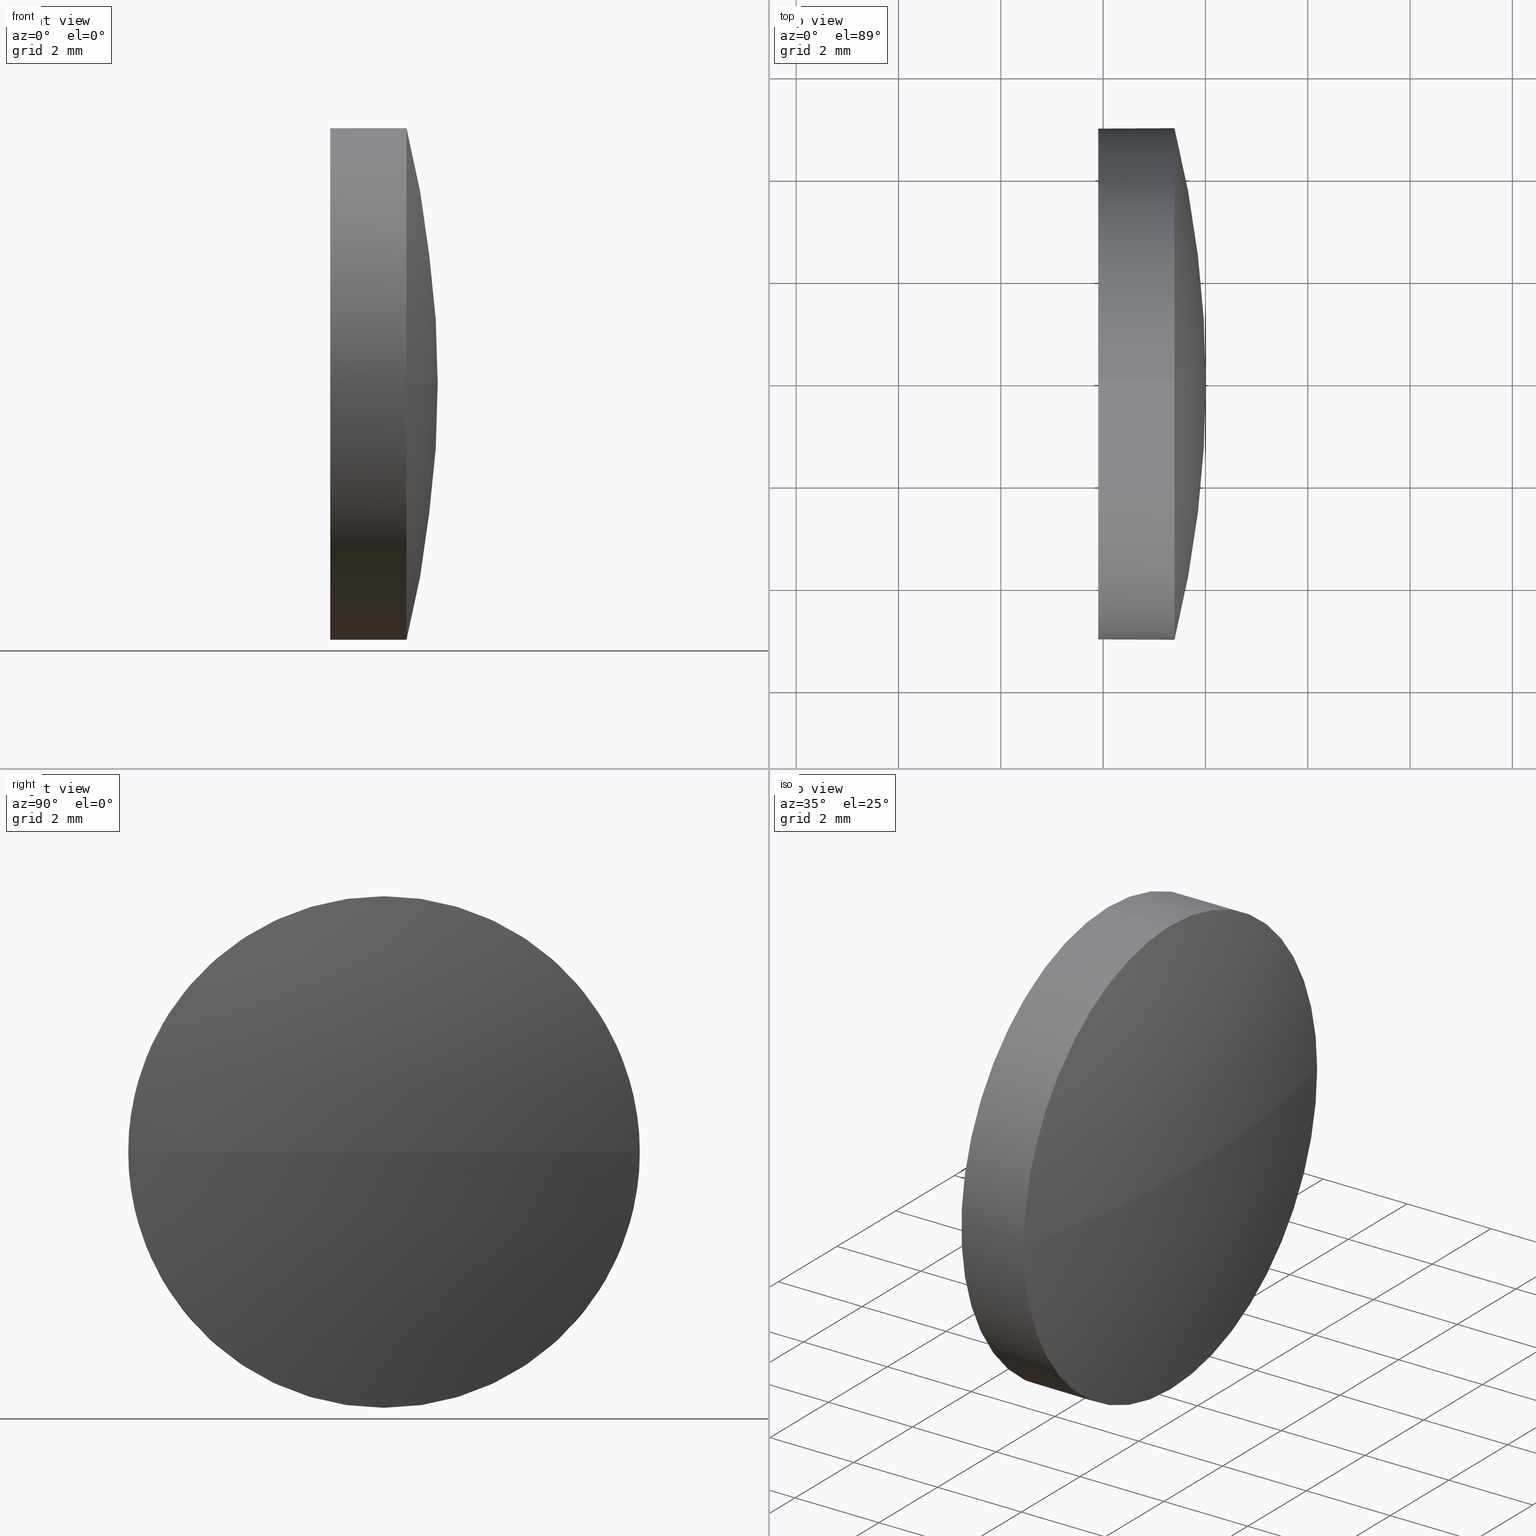
[diagram: canonical four-view strip — front | top / right | iso, engineering-drawing reading convention]
A machine part, canonical four-view strip (front | top / right | iso — engineering-drawing reading convention). The complete STEP part file that produces these views, byte-faithful:
ISO-10303-21;
HEADER;
FILE_DESCRIPTION (( 'STEP AP214' ),
    '1' );
FILE_NAME ('100191.STEP',
    '2019-05-21T07:47:52',
    ( '' ),
    ( '' ),
    'SwSTEP 2.0',
    'SolidWorks 2016',
    '' );
FILE_SCHEMA (( 'AUTOMOTIVE_DESIGN' ));
ENDSEC;

DATA;
#1 = FACE_OUTER_BOUND ( 'NONE', #95, .T. ) ;
#2 = DIRECTION ( 'NONE',  ( 0.0000000000000000000, 0.0000000000000000000, 1.000000000000000000 ) ) ;
#3 = CARTESIAN_POINT ( 'NONE',  ( 601.9052396090429500, 21.94448567432954200, 0.0000000000000000000 ) ) ;
#4 = FACE_OUTER_BOUND ( 'NONE', #58, .T. ) ;
#5 = DIRECTION ( 'NONE',  ( -1.000000000000000000, -0.0000000000000000000, -0.0000000000000000000 ) ) ;
#6 =( NAMED_UNIT ( * ) SI_UNIT ( $, .STERADIAN. ) SOLID_ANGLE_UNIT ( ) );
#7 = CLOSED_SHELL ( 'NONE', ( #78, #149, #135, #137, #114 ) ) ;
#8 = ORIENTED_EDGE ( 'NONE', *, *, #167, .T. ) ;
#9 = DIRECTION ( 'NONE',  ( 1.000000000000000000, 0.0000000000000000000, 0.0000000000000000000 ) ) ;
#10 = FACE_OUTER_BOUND ( 'NONE', #80, .T. ) ;
#11 = EDGE_CURVE ( 'NONE', #13, #99, #126, .T. ) ;
#12 = VERTEX_POINT ( 'NONE', #110 ) ;
#13 = VERTEX_POINT ( 'NONE', #107 ) ;
#14 = EDGE_CURVE ( 'NONE', #13, #86, #65, .T. ) ;
#15 = ORIENTED_EDGE ( 'NONE', *, *, #16, .T. ) ;
#16 = EDGE_CURVE ( 'NONE', #86, #51, #168, .T. ) ;
#17 = EDGE_CURVE ( 'NONE', #79, #99, #180, .T. ) ;
#18 = FILL_AREA_STYLE_COLOUR ( '', #104 ) ;
#19 = DIRECTION ( 'NONE',  ( 0.0000000000000000000, -1.000000000000000000, 0.0000000000000000000 ) ) ;
#20 = CARTESIAN_POINT ( 'NONE',  ( 583.2084363303545200, 21.94448567432968000, 0.0000000000000000000 ) ) ;
#21 = DIRECTION ( 'NONE',  ( 0.0000000000000000000, 0.0000000000000000000, 1.000000000000000000 ) ) ;
#22 = APPLICATION_CONTEXT ( 'automotive_design' ) ;
#23 = FACE_OUTER_BOUND ( 'NONE', #155, .T. ) ;
#24 = ORIENTED_EDGE ( 'NONE', *, *, #14, .F. ) ;
#25 =( LENGTH_UNIT ( ) NAMED_UNIT ( * ) SI_UNIT ( .MILLI., .METRE. ) );
#26 = CYLINDRICAL_SURFACE ( 'NONE', #75, 4.999999999999997300 ) ;
#27 = MANIFOLD_SOLID_BREP ( '��ת2', #7 ) ;
#28 = PRESENTATION_STYLE_ASSIGNMENT (( #61 ) ) ;
#29 = EDGE_CURVE ( 'NONE', #79, #35, #153, .T. ) ;
#30 = ORIENTED_EDGE ( 'NONE', *, *, #16, .F. ) ;
#31 = CIRCLE ( 'NONE', #144, 4.999999999999997300 ) ;
#32 = ORIENTED_EDGE ( 'NONE', *, *, #90, .F. ) ;
#33 = PRESENTATION_LAYER_ASSIGNMENT (  '', '', ( #73 ) ) ;
#34 = DIRECTION ( 'NONE',  ( -1.000000000000000000, -0.0000000000000000000, -0.0000000000000000000 ) ) ;
#35 = VERTEX_POINT ( 'NONE', #76 ) ;
#36 =( NAMED_UNIT ( * ) SI_UNIT ( $, .STERADIAN. ) SOLID_ANGLE_UNIT ( ) );
#37 = DIRECTION ( 'NONE',  ( -1.000000000000000000, -0.0000000000000000000, -0.0000000000000000000 ) ) ;
#38 = PRODUCT_DEFINITION ( 'δ֪', '', #122, #146 ) ;
#39 = PRODUCT_DEFINITION_SHAPE ( 'NONE', 'NONE',  #38 ) ;
#40 = DIRECTION ( 'NONE',  ( 0.0000000000000000000, -1.000000000000000000, 0.0000000000000000000 ) ) ;
#41 = APPLICATION_PROTOCOL_DEFINITION ( 'draft international standard', 'automotive_design', 1998, #22 ) ;
#42 = AXIS2_PLACEMENT_3D ( 'NONE', #115, #68, #19 ) ;
#43 =( LENGTH_UNIT ( ) NAMED_UNIT ( * ) SI_UNIT ( .MILLI., .METRE. ) );
#44 = ORIENTED_EDGE ( 'NONE', *, *, #17, .T. ) ;
#45 = DIRECTION ( 'NONE',  ( 0.0000000000000000000, -1.000000000000000000, -1.224646799147353200E-016 ) ) ;
#46 = CARTESIAN_POINT ( 'NONE',  ( 583.2084363303545200, 21.94448567432968000, 0.0000000000000000000 ) ) ;
#47 = ORIENTED_EDGE ( 'NONE', *, *, #90, .T. ) ;
#48 = DIRECTION ( 'NONE',  ( 0.0000000000000000000, 0.0000000000000000000, -1.000000000000000000 ) ) ;
#49 = DIRECTION ( 'NONE',  ( -1.000000000000000000, 0.0000000000000000000, 0.0000000000000000000 ) ) ;
#50 = PLANE ( 'NONE',  #69 ) ;
#51 = VERTEX_POINT ( 'NONE', #158 ) ;
#52 =( GEOMETRIC_REPRESENTATION_CONTEXT ( 3 ) GLOBAL_UNCERTAINTY_ASSIGNED_CONTEXT ( ( #134 ) ) GLOBAL_UNIT_ASSIGNED_CONTEXT ( ( #43, #60, #77 ) ) REPRESENTATION_CONTEXT ( 'NONE', 'WORKASPACE' ) );
#53 = SURFACE_SIDE_STYLE ('',( #159 ) ) ;
#54 = EDGE_CURVE ( 'NONE', #51, #86, #83, .T. ) ;
#55 = ORIENTED_EDGE ( 'NONE', *, *, #11, .F. ) ;
#56 = UNCERTAINTY_MEASURE_WITH_UNIT (LENGTH_MEASURE( 1.000000000000000100E-005 ), #25, 'distance_accuracy_value', 'NONE');
#57 = AXIS2_PLACEMENT_3D ( 'NONE', #59, #172, #169 ) ;
#58 = EDGE_LOOP ( 'NONE', ( #145, #127, #116, #129 ) ) ;
#59 = CARTESIAN_POINT ( 'NONE',  ( 601.9052396090429500, 21.94448567432954200, 0.0000000000000000000 ) ) ;
#60 =( NAMED_UNIT ( * ) PLANE_ANGLE_UNIT ( ) SI_UNIT ( $, .RADIAN. ) );
#61 = SURFACE_STYLE_USAGE ( .BOTH. , #92 ) ;
#62 = DIRECTION ( 'NONE',  ( 0.0000000000000000000, -1.224646799147353200E-016, 1.000000000000000000 ) ) ;
#63 = DIRECTION ( 'NONE',  ( -1.000000000000000000, -0.0000000000000000000, -0.0000000000000000000 ) ) ;
#64 = CARTESIAN_POINT ( 'NONE',  ( 583.2084363303545200, 21.94448567432968000, 0.0000000000000000000 ) ) ;
#65 = LINE ( 'NONE', #174, #147 ) ;
#66 = MECHANICAL_DESIGN_GEOMETRIC_PRESENTATION_REPRESENTATION (  '', ( #73 ), #52 ) ;
#67 = CARTESIAN_POINT ( 'NONE',  ( 603.3952396090428500, 26.94448567432957400, 6.123233995736636100E-016 ) ) ;
#68 = DIRECTION ( 'NONE',  ( 0.0000000000000000000, 0.0000000000000000000, 1.000000000000000000 ) ) ;
#69 = AXIS2_PLACEMENT_3D ( 'NONE', #178, #151, #48 ) ;
#70 = PRODUCT_CONTEXT ( 'NONE', #22, 'mechanical' ) ;
#71 = CYLINDRICAL_SURFACE ( 'NONE', #97, 4.999999999999997300 ) ;
#72 = APPLICATION_PROTOCOL_DEFINITION ( 'draft international standard', 'automotive_design', 1998, #87 ) ;
#73 = STYLED_ITEM ( 'NONE', ( #28 ), #27 ) ;
#74 = ORIENTED_EDGE ( 'NONE', *, *, #154, .T. ) ;
#75 = AXIS2_PLACEMENT_3D ( 'NONE', #150, #141, #142 ) ;
#76 = CARTESIAN_POINT ( 'NONE',  ( 603.3952396090428500, 16.94448567432964800, 0.0000000000000000000 ) ) ;
#77 =( NAMED_UNIT ( * ) SI_UNIT ( $, .STERADIAN. ) SOLID_ANGLE_UNIT ( ) );
#78 = ADVANCED_FACE ( 'NONE', ( #1 ), #71, .T. ) ;
#79 = VERTEX_POINT ( 'NONE', #81 ) ;
#80 = EDGE_LOOP ( 'NONE', ( #15, #143 ) ) ;
#81 = CARTESIAN_POINT ( 'NONE',  ( 604.0052396090428600, 21.94448567432968000, 0.0000000000000000000 ) ) ;
#82 = CARTESIAN_POINT ( 'NONE',  ( 603.3952396090428500, 21.94448567432954200, 0.0000000000000000000 ) ) ;
#83 = CIRCLE ( 'NONE', #128, 4.999999999999997300 ) ;
#84 = AXIS2_PLACEMENT_3D ( 'NONE', #20, #130, #49 ) ;
#85 = DIRECTION ( 'NONE',  ( 0.0000000000000000000, 0.0000000000000000000, 1.000000000000000000 ) ) ;
#86 = VERTEX_POINT ( 'NONE', #113 ) ;
#87 = APPLICATION_CONTEXT ( 'automotive_design' ) ;
#88 = FILL_AREA_STYLE ('',( #18 ) ) ;
#89 = ORIENTED_EDGE ( 'NONE', *, *, #154, .F. ) ;
#90 = EDGE_CURVE ( 'NONE', #12, #51, #125, .T. ) ;
#91 = AXIS2_PLACEMENT_3D ( 'NONE', #138, #118, #9 ) ;
#92 = SURFACE_SIDE_STYLE ('',( #109 ) ) ;
#93 = PRESENTATION_STYLE_ASSIGNMENT (( #120 ) ) ;
#94 = FILL_AREA_STYLE ('',( #170 ) ) ;
#95 = EDGE_LOOP ( 'NONE', ( #8, #47, #30, #24, #176 ) ) ;
#96 =( LENGTH_UNIT ( ) NAMED_UNIT ( * ) SI_UNIT ( .MILLI., .METRE. ) );
#97 = AXIS2_PLACEMENT_3D ( 'NONE', #179, #37, #85 ) ;
#98 = DIRECTION ( 'NONE',  ( 0.0000000000000000000, 0.0000000000000000000, 1.000000000000000000 ) ) ;
#99 = VERTEX_POINT ( 'NONE', #67 ) ;
#100 = DIRECTION ( 'NONE',  ( -1.000000000000000000, -0.0000000000000000000, -0.0000000000000000000 ) ) ;
#101 = DIRECTION ( 'NONE',  ( 0.0000000000000000000, 0.0000000000000000000, 1.000000000000000000 ) ) ;
#102 = AXIS2_PLACEMENT_3D ( 'NONE', #82, #100, #98 ) ;
#103 = ORIENTED_EDGE ( 'NONE', *, *, #54, .F. ) ;
#104 = COLOUR_RGB ( '',1.000000000000000000, 1.000000000000000000, 1.000000000000000000 ) ;
#105 = ADVANCED_BREP_SHAPE_REPRESENTATION ( '100191', ( #27, #91 ), #112 ) ;
#106 = EDGE_LOOP ( 'NONE', ( #119, #44, #55, #89 ) ) ;
#107 = CARTESIAN_POINT ( 'NONE',  ( 603.3952396090428500, 21.94448567432954200, 4.999999999999997300 ) ) ;
#108 =( GEOMETRIC_REPRESENTATION_CONTEXT ( 3 ) GLOBAL_UNCERTAINTY_ASSIGNED_CONTEXT ( ( #56 ) ) GLOBAL_UNIT_ASSIGNED_CONTEXT ( ( #25, #182, #6 ) ) REPRESENTATION_CONTEXT ( 'NONE', 'WORKASPACE' ) );
#109 = SURFACE_STYLE_FILL_AREA ( #94 ) ;
#110 = CARTESIAN_POINT ( 'NONE',  ( 603.3952396090428500, 21.94448567432954200, -4.999999999999997300 ) ) ;
#111 = DIRECTION ( 'NONE',  ( 0.0000000000000000000, 0.0000000000000000000, 1.000000000000000000 ) ) ;
#112 =( GEOMETRIC_REPRESENTATION_CONTEXT ( 3 ) GLOBAL_UNCERTAINTY_ASSIGNED_CONTEXT ( ( #136 ) ) GLOBAL_UNIT_ASSIGNED_CONTEXT ( ( #96, #131, #36 ) ) REPRESENTATION_CONTEXT ( 'NONE', 'WORKASPACE' ) );
#113 = CARTESIAN_POINT ( 'NONE',  ( 601.9052396090429500, 21.94448567432954200, 4.999999999999997300 ) ) ;
#114 = ADVANCED_FACE ( 'NONE', ( #10 ), #50, .F. ) ;
#115 = CARTESIAN_POINT ( 'NONE',  ( 583.2084363303545200, 21.94448567432968000, 0.0000000000000000000 ) ) ;
#116 = ORIENTED_EDGE ( 'NONE', *, *, #171, .F. ) ;
#117 = SPHERICAL_SURFACE ( 'NONE', #42, 20.79680327868836500 ) ;
#118 = DIRECTION ( 'NONE',  ( 0.0000000000000000000, 0.0000000000000000000, 1.000000000000000000 ) ) ;
#119 = ORIENTED_EDGE ( 'NONE', *, *, #29, .F. ) ;
#120 = SURFACE_STYLE_USAGE ( .BOTH. , #53 ) ;
#121 = AXIS2_PLACEMENT_3D ( 'NONE', #64, #101, #40 ) ;
#122 = PRODUCT_DEFINITION_FORMATION_WITH_SPECIFIED_SOURCE ( '�κ�', '', #157, .NOT_KNOWN. ) ;
#123 = VECTOR ( 'NONE', #133, 1000.000000000000000 ) ;
#124 = ORIENTED_EDGE ( 'NONE', *, *, #14, .T. ) ;
#125 = LINE ( 'NONE', #160, #123 ) ;
#126 = CIRCLE ( 'NONE', #181, 4.999999999999997300 ) ;
#127 = ORIENTED_EDGE ( 'NONE', *, *, #29, .T. ) ;
#128 = AXIS2_PLACEMENT_3D ( 'NONE', #3, #161, #177 ) ;
#129 = ORIENTED_EDGE ( 'NONE', *, *, #167, .F. ) ;
#130 = DIRECTION ( 'NONE',  ( 0.0000000000000000000, 0.0000000000000000000, -1.000000000000000000 ) ) ;
#131 =( NAMED_UNIT ( * ) PLANE_ANGLE_UNIT ( ) SI_UNIT ( $, .RADIAN. ) );
#132 = PRESENTATION_LAYER_ASSIGNMENT (  '', '', ( #186 ) ) ;
#133 = DIRECTION ( 'NONE',  ( -1.000000000000000000, -0.0000000000000000000, -0.0000000000000000000 ) ) ;
#134 = UNCERTAINTY_MEASURE_WITH_UNIT (LENGTH_MEASURE( 1.000000000000000100E-005 ), #43, 'distance_accuracy_value', 'NONE');
#135 = ADVANCED_FACE ( 'NONE', ( #4 ), #165, .T. ) ;
#136 = UNCERTAINTY_MEASURE_WITH_UNIT (LENGTH_MEASURE( 1.000000000000000100E-005 ), #96, 'distance_accuracy_value', 'NONE');
#137 = ADVANCED_FACE ( 'NONE', ( #23 ), #26, .T. ) ;
#138 = CARTESIAN_POINT ( 'NONE',  ( 0.0000000000000000000, 0.0000000000000000000, 0.0000000000000000000 ) ) ;
#139 = ORIENTED_EDGE ( 'NONE', *, *, #171, .T. ) ;
#140 = COLOUR_RGB ( '',1.000000000000000000, 1.000000000000000000, 1.000000000000000000 ) ;
#141 = DIRECTION ( 'NONE',  ( -1.000000000000000000, -0.0000000000000000000, -0.0000000000000000000 ) ) ;
#142 = DIRECTION ( 'NONE',  ( 0.0000000000000000000, 0.0000000000000000000, 1.000000000000000000 ) ) ;
#143 = ORIENTED_EDGE ( 'NONE', *, *, #54, .T. ) ;
#144 = AXIS2_PLACEMENT_3D ( 'NONE', #162, #163, #111 ) ;
#145 = ORIENTED_EDGE ( 'NONE', *, *, #17, .F. ) ;
#146 = PRODUCT_DEFINITION_CONTEXT ( 'detailed design', #87, 'design' ) ;
#147 = VECTOR ( 'NONE', #63, 1000.000000000000000 ) ;
#148 = CARTESIAN_POINT ( 'NONE',  ( 603.3952396090428500, 21.94448567432954200, 0.0000000000000000000 ) ) ;
#149 = ADVANCED_FACE ( 'NONE', ( #185 ), #117, .T. ) ;
#150 = CARTESIAN_POINT ( 'NONE',  ( 601.1075673549775000, 21.94448567432954200, 0.0000000000000000000 ) ) ;
#151 = DIRECTION ( 'NONE',  ( 1.000000000000000000, 0.0000000000000000000, 0.0000000000000000000 ) ) ;
#152 = PRODUCT_RELATED_PRODUCT_CATEGORY ( 'part', '', ( #157 ) ) ;
#153 = CIRCLE ( 'NONE', #84, 20.79680327868838000 ) ;
#154 = EDGE_CURVE ( 'NONE', #35, #13, #31, .T. ) ;
#155 = EDGE_LOOP ( 'NONE', ( #32, #139, #74, #124, #103 ) ) ;
#156 = MECHANICAL_DESIGN_GEOMETRIC_PRESENTATION_REPRESENTATION (  '', ( #186 ), #108 ) ;
#157 = PRODUCT ( '100191', '100191', '', ( #70 ) ) ;
#158 = CARTESIAN_POINT ( 'NONE',  ( 601.9052396090429500, 21.94448567432954200, -4.999999999999997300 ) ) ;
#159 = SURFACE_STYLE_FILL_AREA ( #88 ) ;
#160 = CARTESIAN_POINT ( 'NONE',  ( 601.1075673549775000, 21.94448567432954200, -4.999999999999997300 ) ) ;
#161 = DIRECTION ( 'NONE',  ( -1.000000000000000000, -0.0000000000000000000, -0.0000000000000000000 ) ) ;
#162 = CARTESIAN_POINT ( 'NONE',  ( 603.3952396090428500, 21.94448567432954200, 0.0000000000000000000 ) ) ;
#163 = DIRECTION ( 'NONE',  ( -1.000000000000000000, -0.0000000000000000000, -0.0000000000000000000 ) ) ;
#164 = AXIS2_PLACEMENT_3D ( 'NONE', #46, #62, #45 ) ;
#165 = SPHERICAL_SURFACE ( 'NONE', #121, 20.79680327868836500 ) ;
#166 = CIRCLE ( 'NONE', #102, 4.999999999999997300 ) ;
#167 = EDGE_CURVE ( 'NONE', #99, #12, #173, .T. ) ;
#168 = CIRCLE ( 'NONE', #57, 4.999999999999997300 ) ;
#169 = DIRECTION ( 'NONE',  ( 0.0000000000000000000, 0.0000000000000000000, 1.000000000000000000 ) ) ;
#170 = FILL_AREA_STYLE_COLOUR ( '', #140 ) ;
#171 = EDGE_CURVE ( 'NONE', #12, #35, #166, .T. ) ;
#172 = DIRECTION ( 'NONE',  ( -1.000000000000000000, -0.0000000000000000000, -0.0000000000000000000 ) ) ;
#173 = CIRCLE ( 'NONE', #184, 4.999999999999997300 ) ;
#174 = CARTESIAN_POINT ( 'NONE',  ( 601.1075673549775000, 21.94448567432954200, 4.999999999999997300 ) ) ;
#175 = CARTESIAN_POINT ( 'NONE',  ( 603.3952396090428500, 21.94448567432954200, 0.0000000000000000000 ) ) ;
#176 = ORIENTED_EDGE ( 'NONE', *, *, #11, .T. ) ;
#177 = DIRECTION ( 'NONE',  ( 0.0000000000000000000, 0.0000000000000000000, 1.000000000000000000 ) ) ;
#178 = CARTESIAN_POINT ( 'NONE',  ( 601.9052396090429500, 21.94448567432954200, 0.0000000000000000000 ) ) ;
#179 = CARTESIAN_POINT ( 'NONE',  ( 601.1075673549775000, 21.94448567432954200, 0.0000000000000000000 ) ) ;
#180 = CIRCLE ( 'NONE', #164, 20.79680327868836500 ) ;
#181 = AXIS2_PLACEMENT_3D ( 'NONE', #148, #34, #2 ) ;
#182 =( NAMED_UNIT ( * ) PLANE_ANGLE_UNIT ( ) SI_UNIT ( $, .RADIAN. ) );
#183 = SHAPE_DEFINITION_REPRESENTATION ( #39, #105 ) ;
#184 = AXIS2_PLACEMENT_3D ( 'NONE', #175, #5, #21 ) ;
#185 = FACE_OUTER_BOUND ( 'NONE', #106, .T. ) ;
#186 = STYLED_ITEM ( 'NONE', ( #93 ), #105 ) ;
ENDSEC;
END-ISO-10303-21;
